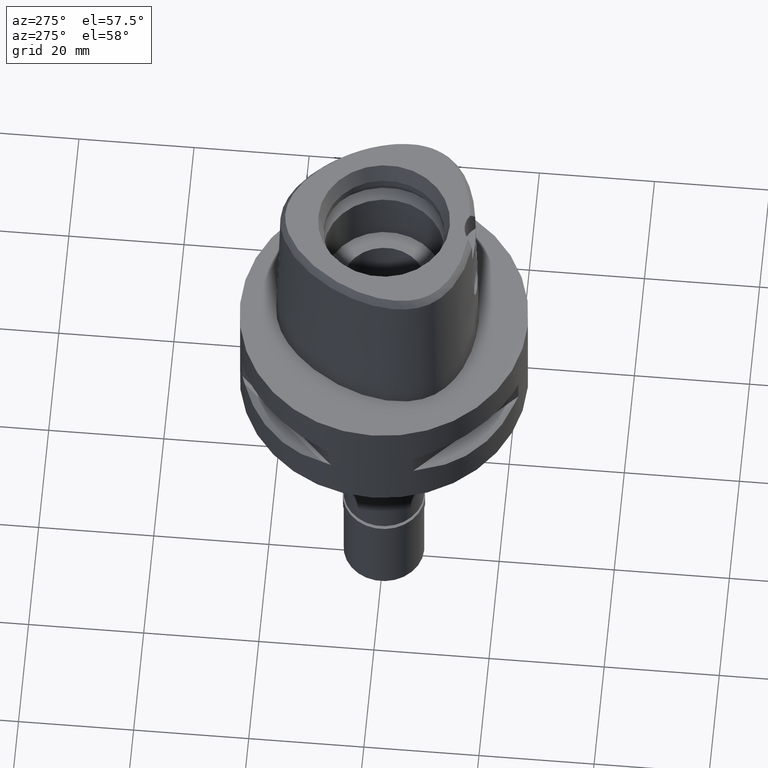
[diagram: clean part render]
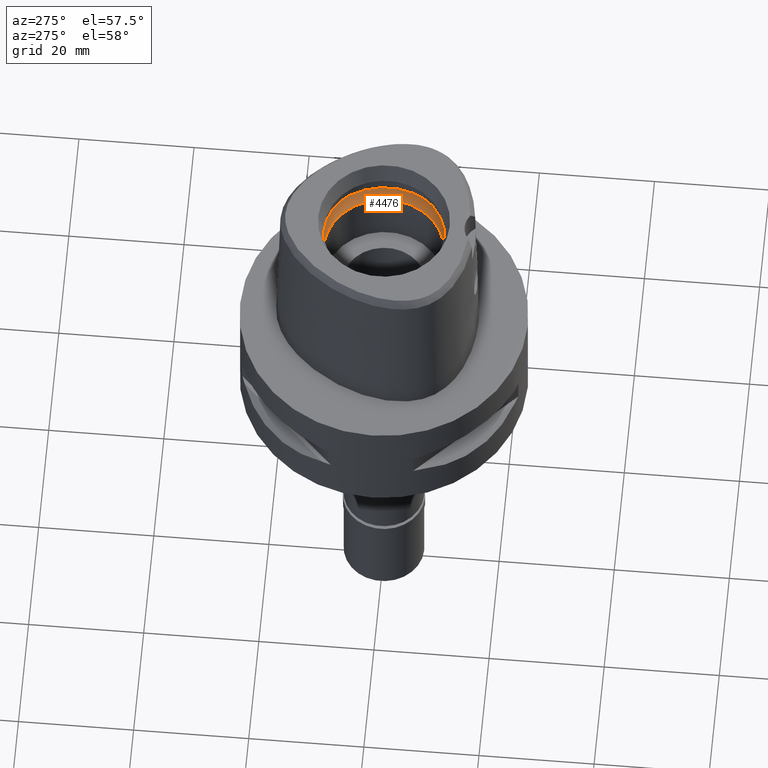
[diagram: same view with one face highlighted and labeled with its STEP entity id]
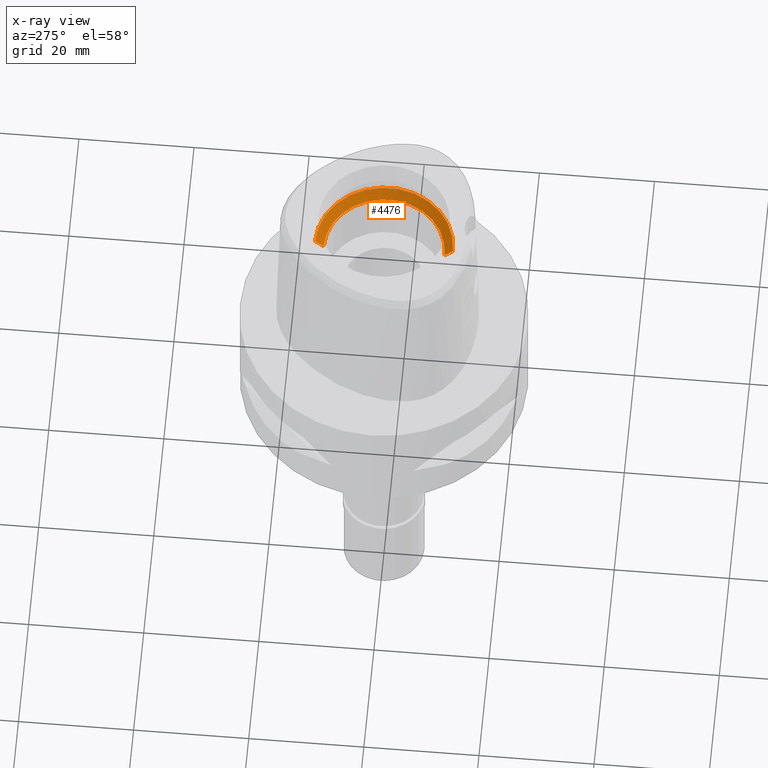
[diagram: x-ray of the same camera — body ghosted, the highlighted face saturated]
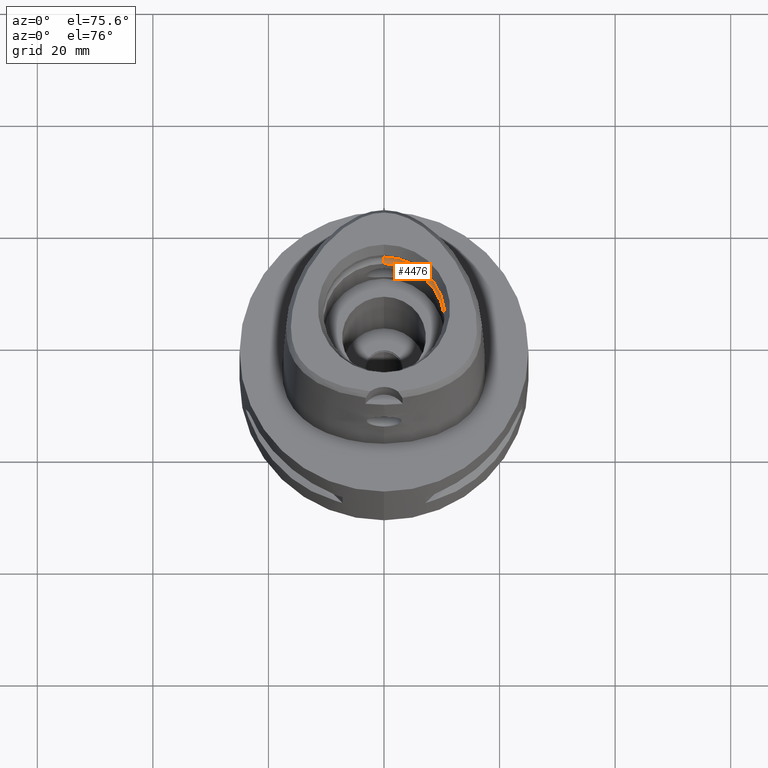
[diagram: same view with one face highlighted and labeled with its STEP entity id]
A machine part, auxiliary view. The second image highlights one B-rep face of the part: STEP entity #4476.
The next image is the same camera in x-ray: the body ghosted, the highlighted face saturated — about 0% of this face is hidden behind the body in this view.
A second angle (auxiliary view) of the same face is appended — the face is thin or edge-on in the first view.
In plain terms, the highlighted conical surface has half-angle 45 deg.
Its self-contained STEP definition (entity closure, byte-faithful):
#563 = CARTESIAN_POINT ( 'NONE',  ( 0.0000000000000000000, 1.483670516304999789E-14, 21.15089161527999906 ) ) ;
#596 = CARTESIAN_POINT ( 'NONE',  ( 0.0000000000000000000, 12.00000000000000000, 21.90089161527999906 ) ) ;
#597 = ORIENTED_EDGE ( 'NONE', *, *, #855, .F. ) ;
#768 = CONICAL_SURFACE ( 'NONE', #4762, 11.25000000000000000, 0.7853981633972997312 ) ;
#855 = EDGE_CURVE ( 'NONE', #1491, #3733, #3485, .T. ) ;
#873 = CARTESIAN_POINT ( 'NONE',  ( 0.0000000000000000000, -10.50000000000000000, 20.40089161527999906 ) ) ;
#1258 = CARTESIAN_POINT ( 'NONE',  ( 0.0000000000000000000, -10.50000000000000000, 20.40089161527999906 ) ) ;
#1319 = DIRECTION ( 'NONE',  ( 0.0000000000000000000, 0.0000000000000000000, 1.000000000000000000 ) ) ;
#1436 = ORIENTED_EDGE ( 'NONE', *, *, #3836, .F. ) ;
#1456 = DIRECTION ( 'NONE',  ( 0.0000000000000000000, 0.0000000000000000000, 1.000000000000000000 ) ) ;
#1491 = VERTEX_POINT ( 'NONE', #596 ) ;
#1666 = FACE_OUTER_BOUND ( 'NONE', #4502, .T. ) ;
#1738 = ORIENTED_EDGE ( 'NONE', *, *, #4120, .T. ) ;
#1928 = DIRECTION ( 'NONE',  ( 0.0000000000000000000, 0.7071067811865474617, 0.7071067811865474617 ) ) ;
#1984 = LINE ( 'NONE', #1258, #2391 ) ;
#2113 = ORIENTED_EDGE ( 'NONE', *, *, #4211, .F. ) ;
#2273 = CARTESIAN_POINT ( 'NONE',  ( 0.0000000000000000000, 1.483670516304999789E-14, 21.90089161527999906 ) ) ;
#2293 = DIRECTION ( 'NONE',  ( 0.0000000000000000000, 0.0000000000000000000, -1.000000000000000000 ) ) ;
#2355 = LINE ( 'NONE', #3865, #3027 ) ;
#2372 = AXIS2_PLACEMENT_3D ( 'NONE', #2273, #2293, #4489 ) ;
#2391 = VECTOR ( 'NONE', #4551, 1000.000000000000114 ) ;
#2804 = DIRECTION ( 'NONE',  ( 0.0000000000000000000, -1.000000000000000000, 0.0000000000000000000 ) ) ;
#2902 = CARTESIAN_POINT ( 'NONE',  ( 0.0000000000000000000, 10.50000000000000000, 20.40089161527999906 ) ) ;
#3027 = VECTOR ( 'NONE', #1928, 1000.000000000000114 ) ;
#3266 = VERTEX_POINT ( 'NONE', #873 ) ;
#3485 = CIRCLE ( 'NONE', #2372, 12.00000000000000000 ) ;
#3505 = CIRCLE ( 'NONE', #4366, 10.50000000000000000 ) ;
#3643 = CARTESIAN_POINT ( 'NONE',  ( 0.0000000000000000000, -12.00000000000000000, 21.90089161527999906 ) ) ;
#3733 = VERTEX_POINT ( 'NONE', #3643 ) ;
#3836 = EDGE_CURVE ( 'NONE', #3266, #3954, #3505, .T. ) ;
#3865 = CARTESIAN_POINT ( 'NONE',  ( 0.0000000000000000000, 10.50000000000000000, 20.40089161527999906 ) ) ;
#3954 = VERTEX_POINT ( 'NONE', #2902 ) ;
#4120 = EDGE_CURVE ( 'NONE', #3266, #3733, #1984, .T. ) ;
#4211 = EDGE_CURVE ( 'NONE', #3954, #1491, #2355, .T. ) ;
#4366 = AXIS2_PLACEMENT_3D ( 'NONE', #4676, #1319, #2804 ) ;
#4476 = ADVANCED_FACE ( 'NONE', ( #1666 ), #768, .F. ) ;
#4489 = DIRECTION ( 'NONE',  ( 0.0000000000000000000, 1.000000000000000000, 0.0000000000000000000 ) ) ;
#4502 = EDGE_LOOP ( 'NONE', ( #597, #2113, #1436, #1738 ) ) ;
#4551 = DIRECTION ( 'NONE',  ( 0.0000000000000000000, -0.7071067811865474617, 0.7071067811865474617 ) ) ;
#4644 = DIRECTION ( 'NONE',  ( 0.0000000000000000000, 1.000000000000000000, 0.0000000000000000000 ) ) ;
#4676 = CARTESIAN_POINT ( 'NONE',  ( 0.0000000000000000000, 1.483670516304999789E-14, 20.40089161527999906 ) ) ;
#4762 = AXIS2_PLACEMENT_3D ( 'NONE', #563, #1456, #4644 ) ;